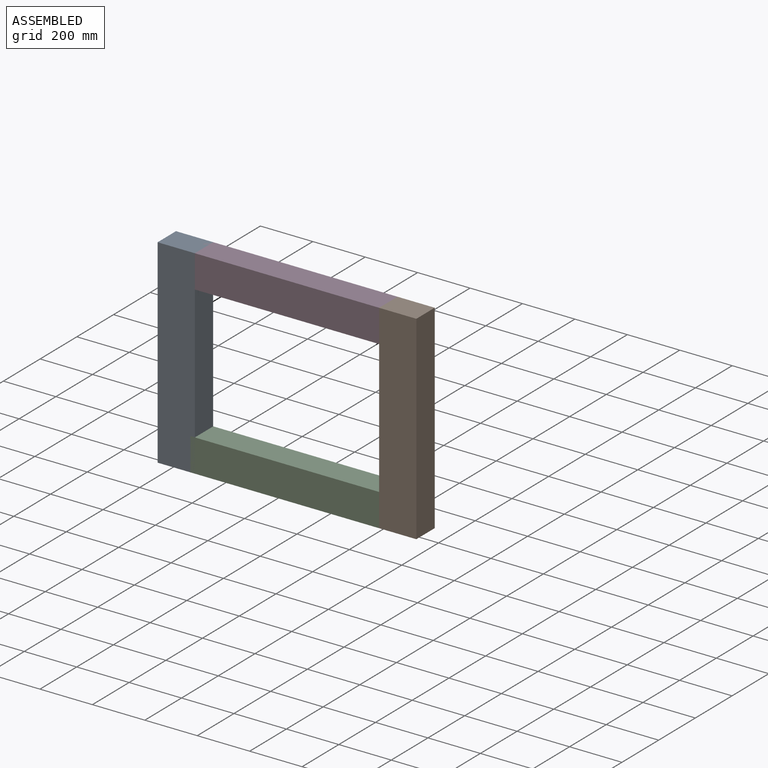
[diagram: assembled view]
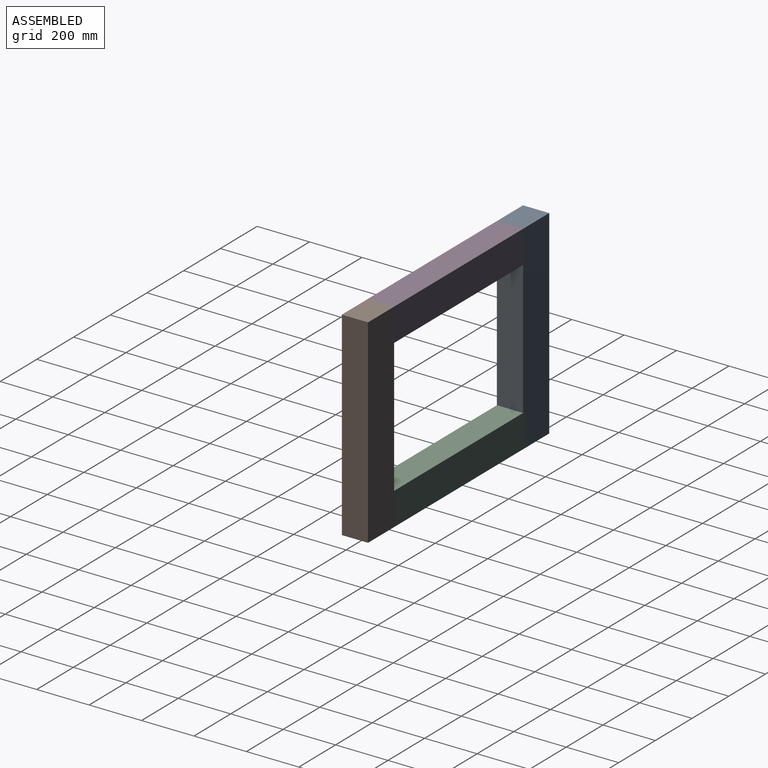
[diagram: assembled view, second angle]
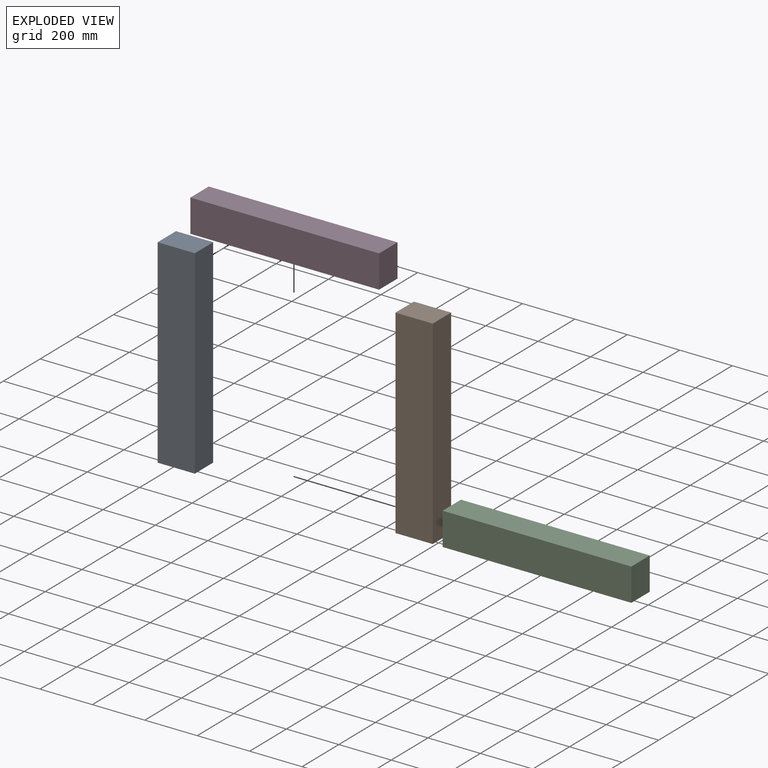
[diagram: exploded view]
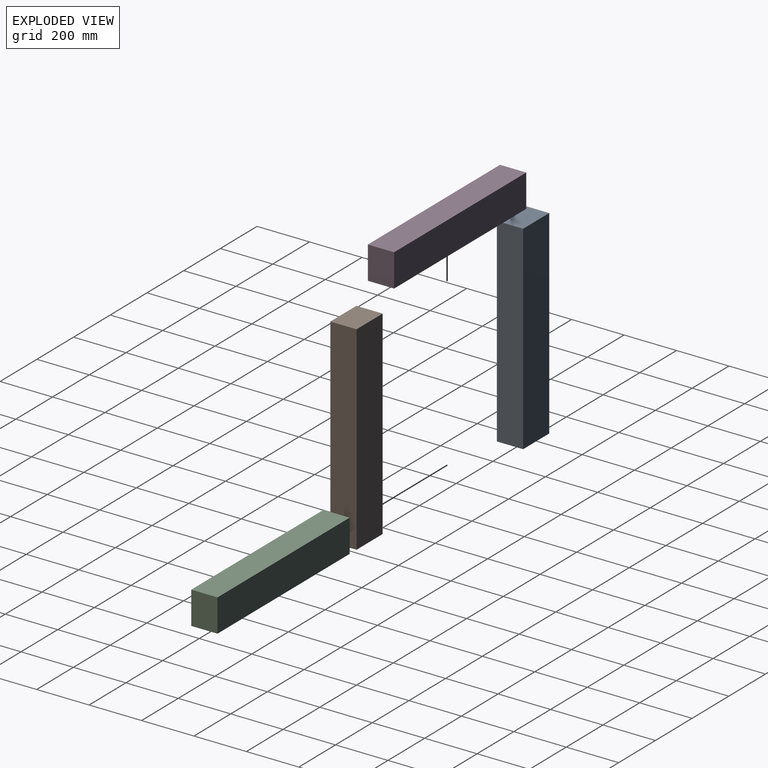
[diagram: exploded view, second angle]
ASSEMBLY  parts=4 mates=2
PART A: 6 faces, bbox 142x100x760 mm
  f0: plane 760x100mm, normal (-1,0,0), area 76000mm2, adj f1,f3,f4,f5
  f1: plane 142x100mm, normal (0,0,-1), area 14200mm2, adj f0,f2,f4,f5
  f2: plane 760x100mm, normal (1,0,0), area 76000mm2, adj f1,f3,f4,f5
  f3: plane 142x100mm, normal (0,0,1), area 14200mm2, adj f0,f2,f4,f5
  f4: plane 760x142mm, normal (0,-1,0), area 107920mm2, adj f0,f1,f2,f3
  f5: plane 760x142mm, normal (0,1,0), area 107920mm2, adj f0,f1,f2,f3
PART B: same geometry as A
PART C: 6 faces, bbox 720x100x125 mm
  f0: plane 125x100mm, normal (-1,0,0), area 12500mm2, adj f1,f3,f4,f5
  f1: plane 720x100mm, normal (0,0,-1), area 72000mm2, adj f0,f2,f4,f5
  f2: plane 125x100mm, normal (1,0,0), area 12500mm2, adj f1,f3,f4,f5
  f3: plane 720x100mm, normal (0,0,1), area 72000mm2, adj f0,f2,f4,f5
  f4: plane 720x125mm, normal (0,-1,0), area 90000mm2, adj f0,f1,f2,f3
  f5: plane 720x125mm, normal (0,1,0), area 90000mm2, adj f0,f1,f2,f3
PART D: same geometry as C
PLACE A t=(743.6,-550.51,425.53)mm
PLACE B t=(1588.6,-550.51,425.53)mm
PLACE C t=(-1166.02,-550.51,115.88)mm
PLACE D t=(-1166.02,-550.51,750.88)mm
MATE planar D.f3 <-> A.f3  axis (0,0,1) through (-1511.13,-550.51,842.03)mm
MATE planar B.f1 <-> C.f1  axis (0,0,1) through (-791.13,-650.51,82.03)mm
